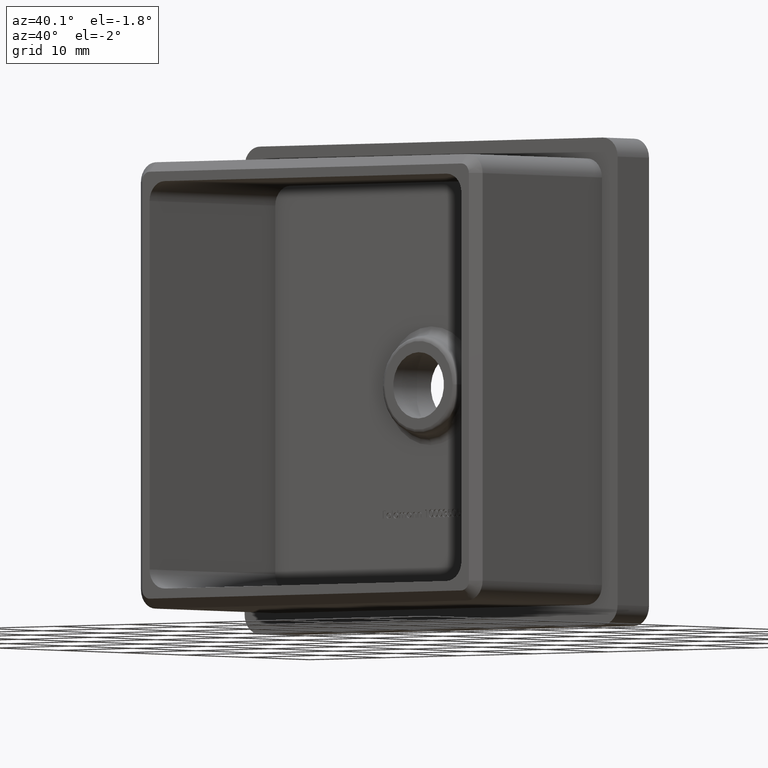
[diagram: clean part render]
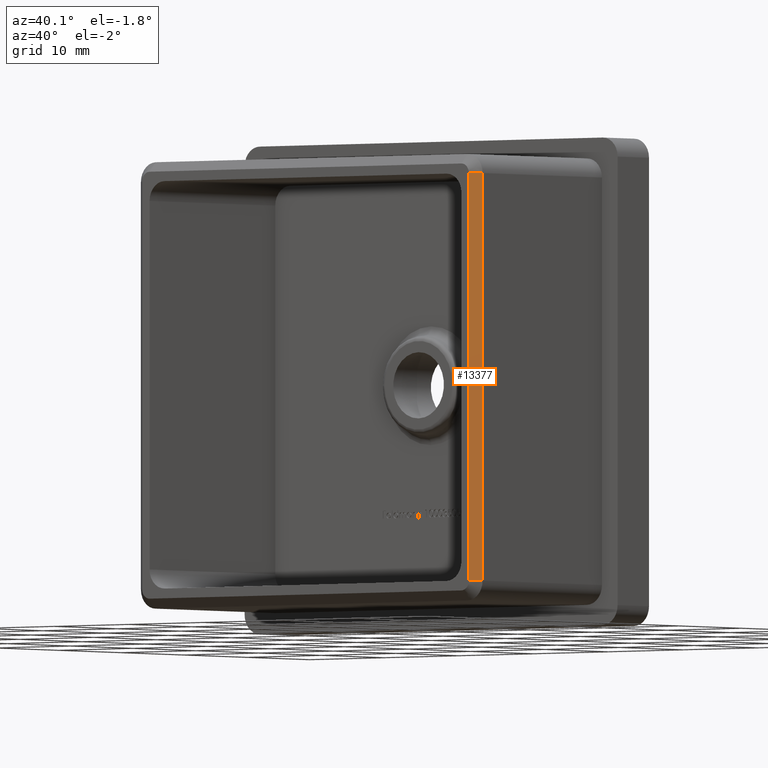
[diagram: same view with one face highlighted and labeled with its STEP entity id]
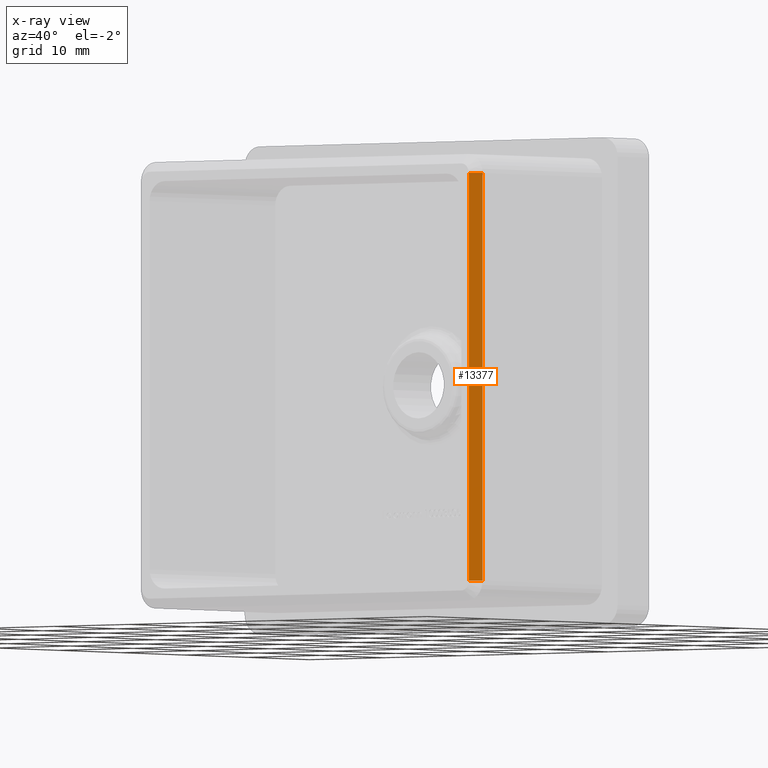
[diagram: x-ray of the same camera — body ghosted, the highlighted face saturated]
A machine part, auxiliary view. The second image highlights one B-rep face of the part: STEP entity #13377.
The next image is the same camera in x-ray: the body ghosted, the highlighted face saturated — about 0% of this face is hidden behind the body in this view.
In plain terms, the highlighted planar face has unit normal (0.7071, -0.7071, 0).
Its self-contained STEP definition (entity closure, byte-faithful):
#357 = VECTOR ( 'NONE', #11306, 1000.000000000000100 ) ;
#1454 = DIRECTION ( 'NONE',  ( 0.7071067811865474600, 0.7071067811865474600, 0.0000000000000000000 ) ) ;
#2048 = DIRECTION ( 'NONE',  ( 0.7071067811865475700, -0.7071067811865475700, 0.0000000000000000000 ) ) ;
#2448 = ORIENTED_EDGE ( 'NONE', *, *, #16113, .T. ) ;
#2898 = VERTEX_POINT ( 'NONE', #2914 ) ;
#2914 = CARTESIAN_POINT ( 'NONE',  ( 22.89999999999998800, -18.99999999999999300, 20.89999999999998800 ) ) ;
#2991 = VERTEX_POINT ( 'NONE', #13292 ) ;
#3707 = CARTESIAN_POINT ( 'NONE',  ( 22.89999999999998800, -18.99999999999999300, -20.89999999999999100 ) ) ;
#4198 = EDGE_CURVE ( 'NONE', #2991, #6911, #7445, .T. ) ;
#4719 = VERTEX_POINT ( 'NONE', #12217 ) ;
#5100 = DIRECTION ( 'NONE',  ( 0.0000000000000000000, 0.0000000000000000000, -1.000000000000000000 ) ) ;
#5586 = LINE ( 'NONE', #11063, #14703 ) ;
#6244 = DIRECTION ( 'NONE',  ( 0.0000000000000000000, 0.0000000000000000000, -1.000000000000000000 ) ) ;
#6908 = VECTOR ( 'NONE', #5100, 1000.000000000000000 ) ;
#6911 = VERTEX_POINT ( 'NONE', #15322 ) ;
#6975 = AXIS2_PLACEMENT_3D ( 'NONE', #14358, #2048, #6244 ) ;
#7445 = LINE ( 'NONE', #13702, #12181 ) ;
#8864 = LINE ( 'NONE', #3707, #6908 ) ;
#9676 = DIRECTION ( 'NONE',  ( 0.0000000000000000000, 0.0000000000000000000, 1.000000000000000000 ) ) ;
#9927 = CARTESIAN_POINT ( 'NONE',  ( 22.89999999999999100, -18.99999999999999300, 20.89999999999998800 ) ) ;
#10074 = FACE_OUTER_BOUND ( 'NONE', #16682, .T. ) ;
#10197 = PLANE ( 'NONE',  #6975 ) ;
#11063 = CARTESIAN_POINT ( 'NONE',  ( 21.89999999999997700, -20.00000000000000000, -20.89999999999999100 ) ) ;
#11306 = DIRECTION ( 'NONE',  ( -0.7071067811865474600, -0.7071067811865474600, 0.0000000000000000000 ) ) ;
#12181 = VECTOR ( 'NONE', #9676, 1000.000000000000000 ) ;
#12217 = CARTESIAN_POINT ( 'NONE',  ( 22.89999999999998800, -18.99999999999999300, -20.89999999999999100 ) ) ;
#12701 = ORIENTED_EDGE ( 'NONE', *, *, #12880, .T. ) ;
#12880 = EDGE_CURVE ( 'NONE', #2898, #6911, #14390, .T. ) ;
#12929 = ORIENTED_EDGE ( 'NONE', *, *, #4198, .F. ) ;
#13292 = CARTESIAN_POINT ( 'NONE',  ( 21.89999999999997700, -20.00000000000000000, -20.89999999999999100 ) ) ;
#13377 = ADVANCED_FACE ( 'NONE', ( #10074 ), #10197, .T. ) ;
#13702 = CARTESIAN_POINT ( 'NONE',  ( 21.89999999999997700, -20.00000000000000000, 20.89999999999998800 ) ) ;
#14358 = CARTESIAN_POINT ( 'NONE',  ( 21.89999999999997700, -20.00000000000000000, 0.0000000000000000000 ) ) ;
#14390 = LINE ( 'NONE', #9927, #357 ) ;
#14629 = ORIENTED_EDGE ( 'NONE', *, *, #17716, .F. ) ;
#14703 = VECTOR ( 'NONE', #1454, 1000.000000000000100 ) ;
#15322 = CARTESIAN_POINT ( 'NONE',  ( 21.89999999999998100, -20.00000000000000000, 20.89999999999998800 ) ) ;
#16113 = EDGE_CURVE ( 'NONE', #2991, #4719, #5586, .T. ) ;
#16682 = EDGE_LOOP ( 'NONE', ( #2448, #14629, #12701, #12929 ) ) ;
#17716 = EDGE_CURVE ( 'NONE', #2898, #4719, #8864, .T. ) ;